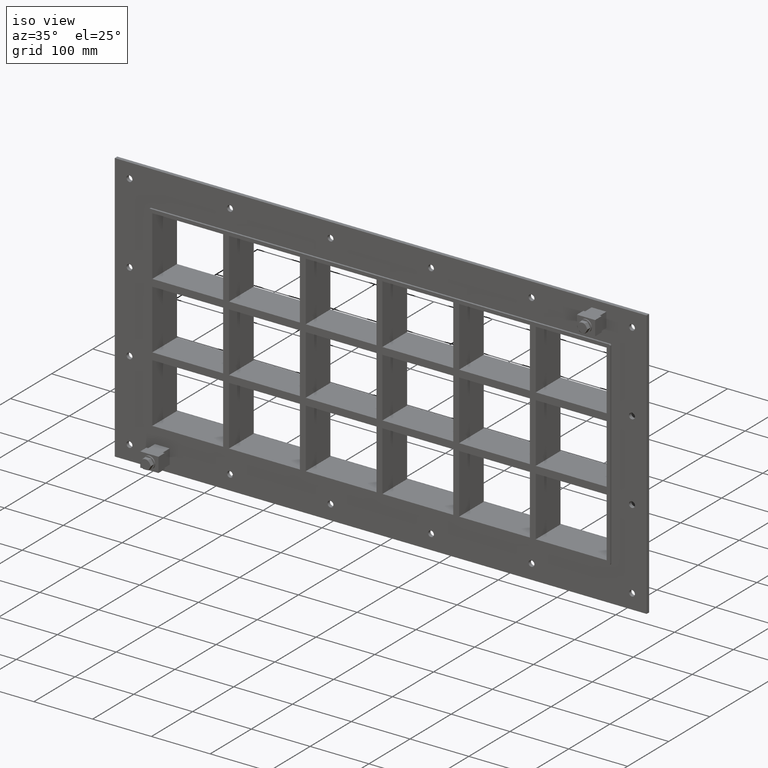
[diagram: clean part render]
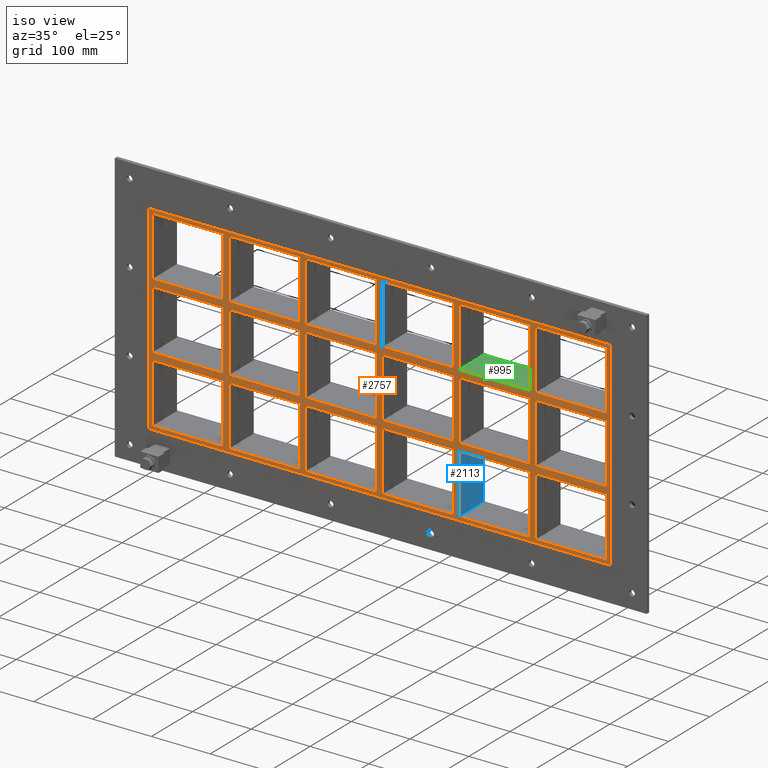
[diagram: same view with three faces highlighted in distinct colors, each labeled with its STEP entity id]
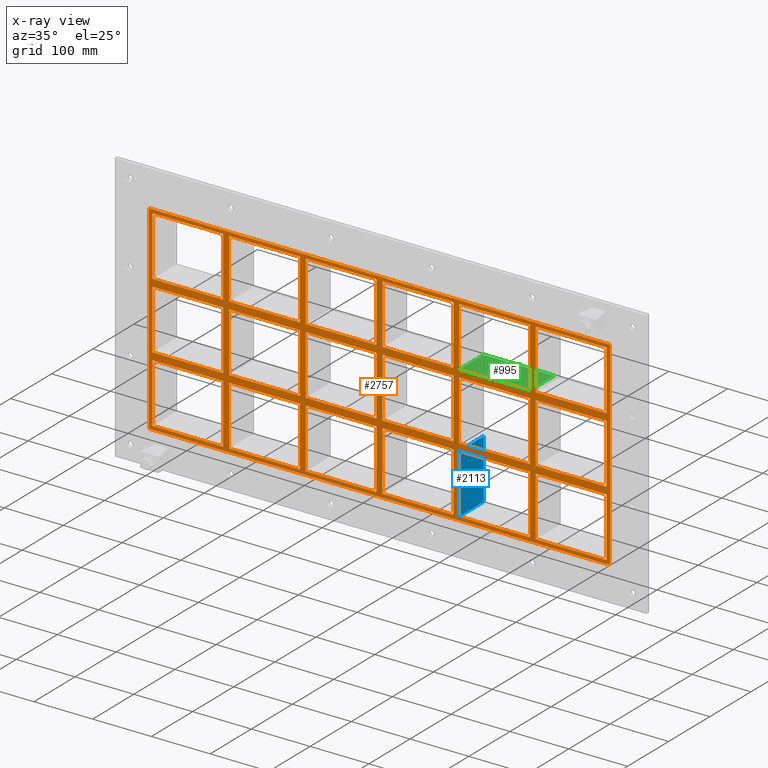
[diagram: x-ray of the same camera — body ghosted, the three highlighted faces saturated]
A machine part, iso view with three faces highlighted in distinct colors.
The next image is the same camera in x-ray (body ghosted, the three faces saturated) — at least one of them is partly hidden behind the body in this view.
Their STEP definitions:

[orange] entity #2757 — the highlighted planar face has unit normal (0, 1, 0).
#521=CARTESIAN_POINT('',(-266.00000000000017,-3.0,50.499999999988709));
#522=VERTEX_POINT('',#521);
#531=CARTESIAN_POINT('',(-386.49999999999852,-3.0,50.499999999988638));
#532=VERTEX_POINT('',#531);
#533=CARTESIAN_POINT('',(-266.00000000000023,-3.0,50.499999999988717));
#534=DIRECTION('',(-1.0,0.0,0.0));
#535=VECTOR('',#534,120.49999999999829);
#536=LINE('',#533,#535);
#537=EDGE_CURVE('',#522,#532,#536,.T.);
#561=CARTESIAN_POINT('',(-135.50000000000011,-3.0,50.499999999988802));
#562=VERTEX_POINT('',#561);
#571=CARTESIAN_POINT('',(-256.00000000000364,-3.0,50.499999999988731));
#572=VERTEX_POINT('',#571);
#573=CARTESIAN_POINT('',(-135.50000000000011,-3.0,50.499999999988802));
#574=DIRECTION('',(-1.0,0.0,0.0));
#575=VECTOR('',#574,120.50000000000352);
#576=LINE('',#573,#575);
#577=EDGE_CURVE('',#562,#572,#576,.T.);
#601=CARTESIAN_POINT('',(-5.000000000000142,-3.0,50.49999999998888));
#602=VERTEX_POINT('',#601);
#611=CARTESIAN_POINT('',(-125.50000000000367,-3.0,50.499999999988809));
#612=VERTEX_POINT('',#611);
#613=CARTESIAN_POINT('',(-5.000000000000114,-3.0,50.49999999998888));
#614=DIRECTION('',(-1.0,0.0,0.0));
#615=VECTOR('',#614,120.50000000000352);
#616=LINE('',#613,#615);
#617=EDGE_CURVE('',#602,#612,#616,.T.);
#641=CARTESIAN_POINT('',(125.4999999999999,-3.0,50.499999999988958));
#642=VERTEX_POINT('',#641);
#651=CARTESIAN_POINT('',(4.999999999996376,-3.0,50.499999999988887));
#652=VERTEX_POINT('',#651);
#653=CARTESIAN_POINT('',(125.49999999999989,-3.0,50.499999999988965));
#654=DIRECTION('',(-1.0,0.0,0.0));
#655=VECTOR('',#654,120.50000000000352);
#656=LINE('',#653,#655);
#657=EDGE_CURVE('',#642,#652,#656,.T.);
#683=CARTESIAN_POINT('',(265.99999999999642,-3.0,50.499999999989043));
#684=VERTEX_POINT('',#683);
#699=CARTESIAN_POINT('',(386.49999999999636,-3.0,50.499999999989129));
#700=VERTEX_POINT('',#699);
#707=CARTESIAN_POINT('',(386.49999999999636,-3.0,50.499999999989129));
#708=DIRECTION('',(-1.0,0.0,0.0));
#709=VECTOR('',#708,120.49999999999994);
#710=LINE('',#707,#709);
#711=EDGE_CURVE('',#700,#684,#710,.T.);
#721=CARTESIAN_POINT('',(255.99999999999991,-3.0,50.499999999989043));
#722=VERTEX_POINT('',#721);
#731=CARTESIAN_POINT('',(135.49999999999642,-3.0,50.499999999988965));
#732=VERTEX_POINT('',#731);
#733=CARTESIAN_POINT('',(255.99999999999991,-3.0,50.499999999989043));
#734=DIRECTION('',(-1.0,0.0,0.0));
#735=VECTOR('',#734,120.5000000000035);
#736=LINE('',#733,#735);
#737=EDGE_CURVE('',#722,#732,#736,.T.);
#763=CARTESIAN_POINT('',(-266.00000000000017,-3.0,62.500000000000462));
#764=VERTEX_POINT('',#763);
#779=CARTESIAN_POINT('',(-386.49999999999852,-3.0,62.500000000000462));
#780=VERTEX_POINT('',#779);
#787=CARTESIAN_POINT('',(-386.49999999999852,-3.0,62.500000000000462));
#788=DIRECTION('',(1.0,0.0,0.0));
#789=VECTOR('',#788,120.49999999999835);
#790=LINE('',#787,#789);
#791=EDGE_CURVE('',#780,#764,#790,.T.);
#801=CARTESIAN_POINT('',(265.99999999999636,-3.0,62.500000000000462));
#802=VERTEX_POINT('',#801);
#811=CARTESIAN_POINT('',(386.49999999999949,-3.0,62.500000000000462));
#812=VERTEX_POINT('',#811);
#813=CARTESIAN_POINT('',(265.99999999999636,-3.0,62.500000000000462));
#814=DIRECTION('',(1.0,0.0,0.0));
#815=VECTOR('',#814,120.50000000000307);
#816=LINE('',#813,#815);
#817=EDGE_CURVE('',#802,#812,#816,.T.);
#843=CARTESIAN_POINT('',(-135.50000000000014,-3.0,62.500000000000462));
#844=VERTEX_POINT('',#843);
#859=CARTESIAN_POINT('',(-256.00000000000364,-3.0,62.500000000000462));
#860=VERTEX_POINT('',#859);
#867=CARTESIAN_POINT('',(-256.00000000000364,-3.0,62.500000000000462));
#868=DIRECTION('',(1.0,0.0,0.0));
#869=VECTOR('',#868,120.50000000000347);
#870=LINE('',#867,#869);
#871=EDGE_CURVE('',#860,#844,#870,.T.);
#883=CARTESIAN_POINT('',(-5.000000000000142,-3.0,62.500000000000462));
#884=VERTEX_POINT('',#883);
#899=CARTESIAN_POINT('',(-125.50000000000364,-3.0,62.500000000000462));
#900=VERTEX_POINT('',#899);
#907=CARTESIAN_POINT('',(-125.50000000000364,-3.0,62.500000000000462));
#908=DIRECTION('',(1.0,0.0,0.0));
#909=VECTOR('',#908,120.50000000000347);
#910=LINE('',#907,#909);
#911=EDGE_CURVE('',#900,#884,#910,.T.);
#923=CARTESIAN_POINT('',(125.4999999999999,-3.0,62.500000000000462));
#924=VERTEX_POINT('',#923);
#939=CARTESIAN_POINT('',(4.999999999996376,-3.0,62.500000000000462));
#940=VERTEX_POINT('',#939);
#947=CARTESIAN_POINT('',(4.999999999996362,-3.0,62.500000000000462));
#948=DIRECTION('',(1.0,0.0,0.0));
#949=VECTOR('',#948,120.50000000000352);
#950=LINE('',#947,#949);
#951=EDGE_CURVE('',#940,#924,#950,.T.);
#963=CARTESIAN_POINT('',(255.99999999999994,-3.0,62.500000000000462));
#964=VERTEX_POINT('',#963);
#979=CARTESIAN_POINT('',(135.49999999999642,-3.0,62.500000000000462));
#980=VERTEX_POINT('',#979);
#987=CARTESIAN_POINT('',(135.49999999999636,-3.0,62.500000000000462));
#988=DIRECTION('',(1.0,0.0,0.0));
#989=VECTOR('',#988,120.50000000000352);
#990=LINE('',#987,#989);
#991=EDGE_CURVE('',#980,#964,#990,.T.);
#1010=CARTESIAN_POINT('',(-386.5,-3.0,163.5));
#1011=VERTEX_POINT('',#1010);
#1018=CARTESIAN_POINT('',(-386.5,-3.0,62.500000000000455));
#1019=DIRECTION('',(0.0,0.0,1.0));
#1020=VECTOR('',#1019,100.99999999999957);
#1021=LINE('',#1018,#1020);
#1022=EDGE_CURVE('',#780,#1011,#1021,.T.);
#1041=CARTESIAN_POINT('',(386.49999999999949,-3.0,-50.499999999999545));
#1042=VERTEX_POINT('',#1041);
#1049=CARTESIAN_POINT('',(386.5,-3.0,50.499999999989122));
#1050=DIRECTION('',(0.0,0.0,-1.0));
#1051=VECTOR('',#1050,100.99999999998866);
#1052=LINE('',#1049,#1051);
#1053=EDGE_CURVE('',#700,#1042,#1052,.T.);
#1064=CARTESIAN_POINT('',(386.5,-3.0,163.5));
#1065=VERTEX_POINT('',#1064);
#1066=CARTESIAN_POINT('',(386.5,-3.0,163.5));
#1067=DIRECTION('',(0.0,0.0,-1.0));
#1068=VECTOR('',#1067,100.99999999999955);
#1069=LINE('',#1066,#1068);
#1070=EDGE_CURVE('',#1065,#812,#1069,.T.);
#1095=CARTESIAN_POINT('',(255.99999999999991,-3.0,163.5));
#1096=VERTEX_POINT('',#1095);
#1097=CARTESIAN_POINT('',(255.99999999999991,-3.0,62.500000000000483));
#1098=DIRECTION('',(0.0,0.0,1.0));
#1099=VECTOR('',#1098,100.99999999999952);
#1100=LINE('',#1097,#1099);
#1101=EDGE_CURVE('',#964,#1096,#1100,.T.);
#1134=CARTESIAN_POINT('',(265.99999999999642,-3.0,163.5));
#1135=VERTEX_POINT('',#1134);
#1142=CARTESIAN_POINT('',(265.99999999999642,-3.0,163.5));
#1143=DIRECTION('',(0.0,0.0,-1.0));
#1144=VECTOR('',#1143,100.99999999999955);
#1145=LINE('',#1142,#1144);
#1146=EDGE_CURVE('',#1135,#802,#1145,.T.);
#1157=CARTESIAN_POINT('',(125.4999999999999,-3.0,163.5));
#1158=VERTEX_POINT('',#1157);
#1159=CARTESIAN_POINT('',(125.4999999999999,-3.0,62.500000000000483));
#1160=DIRECTION('',(0.0,0.0,1.0));
#1161=VECTOR('',#1160,100.99999999999952);
#1162=LINE('',#1159,#1161);
#1163=EDGE_CURVE('',#924,#1158,#1162,.T.);
#1196=CARTESIAN_POINT('',(135.49999999999642,-3.0,163.5));
#1197=VERTEX_POINT('',#1196);
#1204=CARTESIAN_POINT('',(135.49999999999642,-3.0,163.5));
#1205=DIRECTION('',(0.0,0.0,-1.0));
#1206=VECTOR('',#1205,100.99999999999955);
#1207=LINE('',#1204,#1206);
#1208=EDGE_CURVE('',#1197,#980,#1207,.T.);
#1219=CARTESIAN_POINT('',(-5.000000000000142,-3.0,163.5));
#1220=VERTEX_POINT('',#1219);
#1221=CARTESIAN_POINT('',(-5.000000000000142,-3.0,62.500000000000483));
#1222=DIRECTION('',(0.0,0.0,1.0));
#1223=VECTOR('',#1222,100.99999999999952);
#1224=LINE('',#1221,#1223);
#1225=EDGE_CURVE('',#884,#1220,#1224,.T.);
#1258=CARTESIAN_POINT('',(4.999999999996376,-3.0,163.5));
#1259=VERTEX_POINT('',#1258);
#1266=CARTESIAN_POINT('',(4.999999999996376,-3.0,163.5));
#1267=DIRECTION('',(0.0,0.0,-1.0));
#1268=VECTOR('',#1267,100.99999999999955);
#1269=LINE('',#1266,#1268);
#1270=EDGE_CURVE('',#1259,#940,#1269,.T.);
#1281=CARTESIAN_POINT('',(-135.50000000000014,-3.0,163.5));
#1282=VERTEX_POINT('',#1281);
#1283=CARTESIAN_POINT('',(-135.50000000000014,-3.0,62.500000000000483));
#1284=DIRECTION('',(0.0,0.0,1.0));
#1285=VECTOR('',#1284,100.99999999999952);
#1286=LINE('',#1283,#1285);
#1287=EDGE_CURVE('',#844,#1282,#1286,.T.);
#1320=CARTESIAN_POINT('',(-125.50000000000364,-3.0,163.5));
#1321=VERTEX_POINT('',#1320);
#1328=CARTESIAN_POINT('',(-125.50000000000364,-3.0,163.5));
#1329=DIRECTION('',(0.0,0.0,-1.0));
#1330=VECTOR('',#1329,100.99999999999955);
#1331=LINE('',#1328,#1330);
#1332=EDGE_CURVE('',#1321,#900,#1331,.T.);
#1343=CARTESIAN_POINT('',(-266.00000000000017,-3.0,163.5));
#1344=VERTEX_POINT('',#1343);
#1345=CARTESIAN_POINT('',(-266.00000000000017,-3.0,62.500000000000483));
#1346=DIRECTION('',(0.0,0.0,1.0));
#1347=VECTOR('',#1346,100.99999999999952);
#1348=LINE('',#1345,#1347);
#1349=EDGE_CURVE('',#764,#1344,#1348,.T.);
#1382=CARTESIAN_POINT('',(-266.00000000000017,-3.0,-50.499999999999545));
#1383=VERTEX_POINT('',#1382);
#1390=CARTESIAN_POINT('',(-266.00000000000017,-3.0,-50.499999999999531));
#1391=DIRECTION('',(0.0,0.0,1.0));
#1392=VECTOR('',#1391,100.99999999998825);
#1393=LINE('',#1390,#1392);
#1394=EDGE_CURVE('',#1383,#522,#1393,.T.);
#1413=CARTESIAN_POINT('',(-256.00000000000364,-3.0,163.5));
#1414=VERTEX_POINT('',#1413);
#1421=CARTESIAN_POINT('',(-256.00000000000364,-3.0,163.5));
#1422=DIRECTION('',(0.0,0.0,-1.0));
#1423=VECTOR('',#1422,100.99999999999955);
#1424=LINE('',#1421,#1423);
#1425=EDGE_CURVE('',#1414,#860,#1424,.T.);
#1901=CARTESIAN_POINT('',(255.99999999999991,-3.0,-50.499999999999545));
#1902=VERTEX_POINT('',#1901);
#1909=CARTESIAN_POINT('',(255.99999999999991,-3.0,-50.499999999999531));
#1910=DIRECTION('',(0.0,0.0,1.0));
#1911=VECTOR('',#1910,100.99999999998856);
#1912=LINE('',#1909,#1911);
#1913=EDGE_CURVE('',#1902,#722,#1912,.T.);
#1923=CARTESIAN_POINT('',(255.99999999999991,-3.0,-62.500000000010957));
#1924=VERTEX_POINT('',#1923);
#1932=CARTESIAN_POINT('',(255.99999999999991,-3.0,-163.5));
#1933=VERTEX_POINT('',#1932);
#1940=CARTESIAN_POINT('',(255.99999999999991,-3.0,-163.5));
#1941=DIRECTION('',(0.0,0.0,1.0));
#1942=VECTOR('',#1941,100.99999999998906);
#1943=LINE('',#1940,#1942);
#1944=EDGE_CURVE('',#1933,#1924,#1943,.T.);
#1955=CARTESIAN_POINT('',(265.99999999999642,-3.0,-50.499999999999545));
#1956=VERTEX_POINT('',#1955);
#1957=CARTESIAN_POINT('',(265.99999999999642,-3.0,50.499999999989029));
#1958=DIRECTION('',(0.0,0.0,-1.0));
#1959=VECTOR('',#1958,100.99999999998857);
#1960=LINE('',#1957,#1959);
#1961=EDGE_CURVE('',#684,#1956,#1960,.T.);
#1978=CARTESIAN_POINT('',(265.99999999999642,-3.0,-62.500000000010942));
#1979=VERTEX_POINT('',#1978);
#1986=CARTESIAN_POINT('',(265.99999999999642,-3.0,-163.49999999998175));
#1987=VERTEX_POINT('',#1986);
#1988=CARTESIAN_POINT('',(265.99999999999642,-3.0,-62.500000000010971));
#1989=DIRECTION('',(0.0,0.0,-1.0));
#1990=VECTOR('',#1989,100.99999999997078);
#1991=LINE('',#1988,#1990);
#1992=EDGE_CURVE('',#1979,#1987,#1991,.T.);
#2011=CARTESIAN_POINT('',(125.4999999999999,-3.0,-50.499999999999545));
#2012=VERTEX_POINT('',#2011);
#2019=CARTESIAN_POINT('',(125.4999999999999,-3.0,-50.499999999999531));
#2020=DIRECTION('',(0.0,0.0,1.0));
#2021=VECTOR('',#2020,100.9999999999885);
#2022=LINE('',#2019,#2021);
#2023=EDGE_CURVE('',#2012,#642,#2022,.T.);
#2033=CARTESIAN_POINT('',(125.4999999999999,-3.0,-62.500000000011028));
#2034=VERTEX_POINT('',#2033);
#2042=CARTESIAN_POINT('',(125.4999999999999,-3.0,-163.5));
#2043=VERTEX_POINT('',#2042);
#2050=CARTESIAN_POINT('',(125.4999999999999,-3.0,-163.5));
#2051=DIRECTION('',(0.0,0.0,1.0));
#2052=VECTOR('',#2051,100.99999999998899);
#2053=LINE('',#2050,#2052);
#2054=EDGE_CURVE('',#2043,#2034,#2053,.T.);
#2065=CARTESIAN_POINT('',(135.49999999999642,-3.0,-50.499999999999545));
#2066=VERTEX_POINT('',#2065);
#2067=CARTESIAN_POINT('',(135.49999999999642,-3.0,50.499999999988944));
#2068=DIRECTION('',(0.0,0.0,-1.0));
#2069=VECTOR('',#2068,100.99999999998849);
#2070=LINE('',#2067,#2069);
#2071=EDGE_CURVE('',#732,#2066,#2070,.T.);
#2088=CARTESIAN_POINT('',(135.49999999999642,-3.0,-62.500000000011013));
#2089=VERTEX_POINT('',#2088);
#2096=CARTESIAN_POINT('',(135.49999999999642,-3.0,-163.49999999998175));
#2097=VERTEX_POINT('',#2096);
#2098=CARTESIAN_POINT('',(135.49999999999642,-3.0,-62.500000000011028));
#2099=DIRECTION('',(0.0,0.0,-1.0));
#2100=VECTOR('',#2099,100.99999999997073);
#2101=LINE('',#2098,#2100);
#2102=EDGE_CURVE('',#2089,#2097,#2101,.T.);
#2121=CARTESIAN_POINT('',(-5.000000000000142,-3.0,-50.499999999999545));
#2122=VERTEX_POINT('',#2121);
#2129=CARTESIAN_POINT('',(-5.000000000000142,-3.0,-50.499999999999531));
#2130=DIRECTION('',(0.0,0.0,1.0));
#2131=VECTOR('',#2130,100.99999999998845);
#2132=LINE('',#2129,#2131);
#2133=EDGE_CURVE('',#2122,#602,#2132,.T.);
#2143=CARTESIAN_POINT('',(-5.000000000000142,-3.0,-62.50000000001112));
#2144=VERTEX_POINT('',#2143);
#2152=CARTESIAN_POINT('',(-5.000000000000142,-3.0,-163.5));
#2153=VERTEX_POINT('',#2152);
#2160=CARTESIAN_POINT('',(-5.000000000000142,-3.0,-163.5));
#2161=DIRECTION('',(0.0,0.0,1.0));
#2162=VECTOR('',#2161,100.99999999998889);
#2163=LINE('',#2160,#2162);
#2164=EDGE_CURVE('',#2153,#2144,#2163,.T.);
#2175=CARTESIAN_POINT('',(4.999999999996376,-3.0,-50.499999999999545));
#2176=VERTEX_POINT('',#2175);
#2177=CARTESIAN_POINT('',(4.999999999996376,-3.0,50.499999999988873));
#2178=DIRECTION('',(0.0,0.0,-1.0));
#2179=VECTOR('',#2178,100.99999999998842);
#2180=LINE('',#2177,#2179);
#2181=EDGE_CURVE('',#652,#2176,#2180,.T.);
#2198=CARTESIAN_POINT('',(4.999999999996376,-3.0,-62.50000000001112));
#2199=VERTEX_POINT('',#2198);
#2206=CARTESIAN_POINT('',(4.999999999996376,-3.0,-163.49999999998175));
#2207=VERTEX_POINT('',#2206);
#2208=CARTESIAN_POINT('',(4.999999999996376,-3.0,-62.500000000011141));
#2209=DIRECTION('',(0.0,0.0,-1.0));
#2210=VECTOR('',#2209,100.99999999997061);
#2211=LINE('',#2208,#2210);
#2212=EDGE_CURVE('',#2199,#2207,#2211,.T.);
#2231=CARTESIAN_POINT('',(-135.50000000000014,-3.0,-50.499999999999545));
#2232=VERTEX_POINT('',#2231);
#2239=CARTESIAN_POINT('',(-135.50000000000014,-3.0,-50.499999999999531));
#2240=DIRECTION('',(0.0,0.0,1.0));
#2241=VECTOR('',#2240,100.99999999998836);
#2242=LINE('',#2239,#2241);
#2243=EDGE_CURVE('',#2232,#562,#2242,.T.);
#2253=CARTESIAN_POINT('',(-135.50000000000014,-3.0,-62.500000000011212));
#2254=VERTEX_POINT('',#2253);
#2262=CARTESIAN_POINT('',(-135.50000000000014,-3.0,-163.5));
#2263=VERTEX_POINT('',#2262);
#2270=CARTESIAN_POINT('',(-135.50000000000014,-3.0,-163.5));
#2271=DIRECTION('',(0.0,0.0,1.0));
#2272=VECTOR('',#2271,100.9999999999888);
#2273=LINE('',#2270,#2272);
#2274=EDGE_CURVE('',#2263,#2254,#2273,.T.);
#2285=CARTESIAN_POINT('',(-125.50000000000364,-3.0,-50.499999999999545));
#2286=VERTEX_POINT('',#2285);
#2287=CARTESIAN_POINT('',(-125.50000000000364,-3.0,50.499999999988802));
#2288=DIRECTION('',(0.0,0.0,-1.0));
#2289=VECTOR('',#2288,100.99999999998835);
#2290=LINE('',#2287,#2289);
#2291=EDGE_CURVE('',#612,#2286,#2290,.T.);
#2308=CARTESIAN_POINT('',(-125.50000000000364,-3.0,-62.500000000011191));
#2309=VERTEX_POINT('',#2308);
#2316=CARTESIAN_POINT('',(-125.50000000000364,-3.0,-163.49999999998175));
#2317=VERTEX_POINT('',#2316);
#2318=CARTESIAN_POINT('',(-125.50000000000364,-3.0,-62.500000000011198));
#2319=DIRECTION('',(0.0,0.0,-1.0));
#2320=VECTOR('',#2319,100.99999999997056);
#2321=LINE('',#2318,#2320);
#2322=EDGE_CURVE('',#2309,#2317,#2321,.T.);
#2341=CARTESIAN_POINT('',(-256.00000000000364,-3.0,-163.49999999998175));
#2342=VERTEX_POINT('',#2341);
#2349=CARTESIAN_POINT('',(-135.50000000000011,-3.0,-163.5));
#2350=DIRECTION('',(-1.0,0.0,0.0));
#2351=VECTOR('',#2350,120.50000000000352);
#2352=LINE('',#2349,#2351);
#2353=EDGE_CURVE('',#2263,#2342,#2352,.T.);
#2366=CARTESIAN_POINT('',(-5.000000000000142,-3.0,-163.5));
#2367=DIRECTION('',(-1.0,0.0,0.0));
#2368=VECTOR('',#2367,120.5000000000035);
#2369=LINE('',#2366,#2368);
#2370=EDGE_CURVE('',#2153,#2317,#2369,.T.);
#2383=CARTESIAN_POINT('',(125.49999999999991,-3.0,-163.5));
#2384=DIRECTION('',(-1.0,0.0,0.0));
#2385=VECTOR('',#2384,120.50000000000352);
#2386=LINE('',#2383,#2385);
#2387=EDGE_CURVE('',#2043,#2207,#2386,.T.);
#2400=CARTESIAN_POINT('',(255.99999999999991,-3.0,-163.5));
#2401=DIRECTION('',(-1.0,0.0,0.0));
#2402=VECTOR('',#2401,120.5000000000035);
#2403=LINE('',#2400,#2402);
#2404=EDGE_CURVE('',#1933,#2097,#2403,.T.);
#2415=CARTESIAN_POINT('',(386.5,-3.0,-163.5));
#2416=VERTEX_POINT('',#2415);
#2417=CARTESIAN_POINT('',(386.5,-3.0,-163.5));
#2418=DIRECTION('',(-1.0,0.0,0.0));
#2419=VECTOR('',#2418,120.50000000000358);
#2420=LINE('',#2417,#2419);
#2421=EDGE_CURVE('',#2416,#1987,#2420,.T.);
#2433=CARTESIAN_POINT('',(3.239797E-014,-3.0,0.0));
#2434=DIRECTION('',(0.0,1.0,0.0));
#2435=DIRECTION('',(0.0,0.0,1.0));
#2436=AXIS2_PLACEMENT_3D('',#2433,#2434,#2435);
#2437=PLANE('',#2436);
#2438=CARTESIAN_POINT('',(-390.5,-3.0,-169.50000000000003));
#2439=VERTEX_POINT('',#2438);
#2440=CARTESIAN_POINT('',(-392.5,-3.0,-167.5));
#2441=VERTEX_POINT('',#2440);
#2442=CARTESIAN_POINT('',(-390.5,-3.0,-167.5));
#2443=DIRECTION('',(0.0,1.0,0.0));
#2444=DIRECTION('',(-0.707106781186548,0.0,-0.707106781186548));
#2445=AXIS2_PLACEMENT_3D('',#2442,#2443,#2444);
#2446=CIRCLE('',#2445,2.0);
#2447=EDGE_CURVE('',#2439,#2441,#2446,.T.);
#2448=ORIENTED_EDGE('',*,*,#2447,.F.);
#2449=CARTESIAN_POINT('',(390.50000000000011,-3.0,-169.50000000000003));
#2450=VERTEX_POINT('',#2449);
#2451=CARTESIAN_POINT('',(-390.5,-3.0,-169.50000000000003));
#2452=DIRECTION('',(1.0,0.0,0.0));
#2453=VECTOR('',#2452,781.00000000000011);
#2454=LINE('',#2451,#2453);
#2455=EDGE_CURVE('',#2439,#2450,#2454,.T.);
#2456=ORIENTED_EDGE('',*,*,#2455,.T.);
#2457=CARTESIAN_POINT('',(392.50000000000006,-3.0,-167.5));
#2458=VERTEX_POINT('',#2457);
#2459=CARTESIAN_POINT('',(390.50000000000011,-3.0,-167.5));
#2460=DIRECTION('',(0.0,1.0,0.0));
#2461=DIRECTION('',(0.707106781186522,0.0,-0.707106781186573));
#2462=AXIS2_PLACEMENT_3D('',#2459,#2460,#2461);
#2463=CIRCLE('',#2462,2.0);
#2464=EDGE_CURVE('',#2458,#2450,#2463,.T.);
#2465=ORIENTED_EDGE('',*,*,#2464,.F.);
#2466=CARTESIAN_POINT('',(392.50000000000006,-3.0,167.50000000000003));
#2467=VERTEX_POINT('',#2466);
#2468=CARTESIAN_POINT('',(392.50000000000006,-3.0,-167.49999999999997));
#2469=DIRECTION('',(0.0,0.0,1.0));
#2470=VECTOR('',#2469,335.0);
#2471=LINE('',#2468,#2470);
#2472=EDGE_CURVE('',#2458,#2467,#2471,.T.);
#2473=ORIENTED_EDGE('',*,*,#2472,.T.);
#2474=CARTESIAN_POINT('',(390.50000000000006,-3.0,169.50000000000003));
#2475=VERTEX_POINT('',#2474);
#2476=CARTESIAN_POINT('',(390.50000000000006,-3.0,167.50000000000003));
#2477=DIRECTION('',(0.0,1.0,0.0));
#2478=DIRECTION('',(0.70710678118656,0.0,0.707106781186535));
#2479=AXIS2_PLACEMENT_3D('',#2476,#2477,#2478);
#2480=CIRCLE('',#2479,2.0);
#2481=EDGE_CURVE('',#2475,#2467,#2480,.T.);
#2482=ORIENTED_EDGE('',*,*,#2481,.F.);
#2483=CARTESIAN_POINT('',(-390.5,-3.0,169.50000000000003));
#2484=VERTEX_POINT('',#2483);
#2485=CARTESIAN_POINT('',(390.50000000000006,-3.0,169.50000000000003));
#2486=DIRECTION('',(-1.0,0.0,0.0));
#2487=VECTOR('',#2486,781.0);
#2488=LINE('',#2485,#2487);
#2489=EDGE_CURVE('',#2475,#2484,#2488,.T.);
#2490=ORIENTED_EDGE('',*,*,#2489,.T.);
#2491=CARTESIAN_POINT('',(-392.5,-3.0,167.5));
#2492=VERTEX_POINT('',#2491);
#2493=CARTESIAN_POINT('',(-390.5,-3.0,167.5));
#2494=DIRECTION('',(0.0,1.0,0.0));
#2495=DIRECTION('',(-0.707106781186548,0.0,0.707106781186548));
#2496=AXIS2_PLACEMENT_3D('',#2493,#2494,#2495);
#2497=CIRCLE('',#2496,2.0);
#2498=EDGE_CURVE('',#2492,#2484,#2497,.T.);
#2499=ORIENTED_EDGE('',*,*,#2498,.F.);
#2500=CARTESIAN_POINT('',(-392.5,-3.0,167.49999999999997));
#2501=DIRECTION('',(0.0,0.0,-1.0));
#2502=VECTOR('',#2501,335.0);
#2503=LINE('',#2500,#2502);
#2504=EDGE_CURVE('',#2492,#2441,#2503,.T.);
#2505=ORIENTED_EDGE('',*,*,#2504,.T.);
#2506=EDGE_LOOP('',(#2448,#2456,#2465,#2473,#2482,#2490,#2499,#2505));
#2507=FACE_OUTER_BOUND('',#2506,.T.);
#2508=ORIENTED_EDGE('',*,*,#1022,.T.);
#2509=CARTESIAN_POINT('',(-386.5,-3.0,163.5));
#2510=DIRECTION('',(1.0,0.0,0.0));
#2511=VECTOR('',#2510,120.49999999999983);
#2512=LINE('',#2509,#2511);
#2513=EDGE_CURVE('',#1011,#1344,#2512,.T.);
#2514=ORIENTED_EDGE('',*,*,#2513,.T.);
#2515=ORIENTED_EDGE('',*,*,#1349,.F.);
#2516=ORIENTED_EDGE('',*,*,#791,.F.);
#2517=EDGE_LOOP('',(#2508,#2514,#2515,#2516));
#2518=FACE_BOUND('',#2517,.T.);
#2519=ORIENTED_EDGE('',*,*,#1053,.T.);
#2520=CARTESIAN_POINT('',(265.99999999999636,-3.0,-50.499999999999545));
#2521=DIRECTION('',(1.0,0.0,0.0));
#2522=VECTOR('',#2521,120.50000000000307);
#2523=LINE('',#2520,#2522);
#2524=EDGE_CURVE('',#1956,#1042,#2523,.T.);
#2525=ORIENTED_EDGE('',*,*,#2524,.F.);
#2526=ORIENTED_EDGE('',*,*,#1961,.F.);
#2527=ORIENTED_EDGE('',*,*,#711,.F.);
#2528=EDGE_LOOP('',(#2519,#2525,#2526,#2527));
#2529=FACE_BOUND('',#2528,.T.);
#2530=ORIENTED_EDGE('',*,*,#1913,.F.);
#2531=CARTESIAN_POINT('',(135.49999999999636,-3.0,-50.499999999999545));
#2532=DIRECTION('',(1.0,0.0,0.0));
#2533=VECTOR('',#2532,120.50000000000352);
#2534=LINE('',#2531,#2533);
#2535=EDGE_CURVE('',#2066,#1902,#2534,.T.);
#2536=ORIENTED_EDGE('',*,*,#2535,.F.);
#2537=ORIENTED_EDGE('',*,*,#2071,.F.);
#2538=ORIENTED_EDGE('',*,*,#737,.F.);
#2539=EDGE_LOOP('',(#2530,#2536,#2537,#2538));
#2540=FACE_BOUND('',#2539,.T.);
#2541=ORIENTED_EDGE('',*,*,#2023,.F.);
#2542=CARTESIAN_POINT('',(4.999999999996362,-3.0,-50.499999999999545));
#2543=DIRECTION('',(1.0,0.0,0.0));
#2544=VECTOR('',#2543,120.50000000000352);
#2545=LINE('',#2542,#2544);
#2546=EDGE_CURVE('',#2176,#2012,#2545,.T.);
#2547=ORIENTED_EDGE('',*,*,#2546,.F.);
#2548=ORIENTED_EDGE('',*,*,#2181,.F.);
#2549=ORIENTED_EDGE('',*,*,#657,.F.);
#2550=EDGE_LOOP('',(#2541,#2547,#2548,#2549));
#2551=FACE_BOUND('',#2550,.T.);
#2552=ORIENTED_EDGE('',*,*,#2133,.F.);
#2553=CARTESIAN_POINT('',(-125.50000000000364,-3.0,-50.499999999999545));
#2554=DIRECTION('',(1.0,0.0,0.0));
#2555=VECTOR('',#2554,120.50000000000347);
#2556=LINE('',#2553,#2555);
#2557=EDGE_CURVE('',#2286,#2122,#2556,.T.);
#2558=ORIENTED_EDGE('',*,*,#2557,.F.);
#2559=ORIENTED_EDGE('',*,*,#2291,.F.);
#2560=ORIENTED_EDGE('',*,*,#617,.F.);
#2561=EDGE_LOOP('',(#2552,#2558,#2559,#2560));
#2562=FACE_BOUND('',#2561,.T.);
#2563=ORIENTED_EDGE('',*,*,#2243,.F.);
#2564=CARTESIAN_POINT('',(-256.00000000000364,-3.0,-50.499999999999545));
#2565=VERTEX_POINT('',#2564);
#2566=CARTESIAN_POINT('',(-256.00000000000364,-3.0,-50.499999999999545));
#2567=DIRECTION('',(1.0,0.0,0.0));
#2568=VECTOR('',#2567,120.50000000000347);
#2569=LINE('',#2566,#2568);
#2570=EDGE_CURVE('',#2565,#2232,#2569,.T.);
#2571=ORIENTED_EDGE('',*,*,#2570,.F.);
#2572=CARTESIAN_POINT('',(-256.00000000000364,-3.0,50.499999999988717));
#2573=DIRECTION('',(0.0,0.0,-1.0));
#2574=VECTOR('',#2573,100.99999999998826);
#2575=LINE('',#2572,#2574);
#2576=EDGE_CURVE('',#572,#2565,#2575,.T.);
#2577=ORIENTED_EDGE('',*,*,#2576,.F.);
#2578=ORIENTED_EDGE('',*,*,#577,.F.);
#2579=EDGE_LOOP('',(#2563,#2571,#2577,#2578));
#2580=FACE_BOUND('',#2579,.T.);
#2581=ORIENTED_EDGE('',*,*,#991,.F.);
#2582=ORIENTED_EDGE('',*,*,#1208,.F.);
#2583=CARTESIAN_POINT('',(135.49999999999648,-3.0,163.5));
#2584=DIRECTION('',(1.0,0.0,0.0));
#2585=VECTOR('',#2584,120.50000000000341);
#2586=LINE('',#2583,#2585);
#2587=EDGE_CURVE('',#1197,#1096,#2586,.T.);
#2588=ORIENTED_EDGE('',*,*,#2587,.T.);
#2589=ORIENTED_EDGE('',*,*,#1101,.F.);
#2590=EDGE_LOOP('',(#2581,#2582,#2588,#2589));
#2591=FACE_BOUND('',#2590,.T.);
#2592=ORIENTED_EDGE('',*,*,#951,.F.);
#2593=ORIENTED_EDGE('',*,*,#1270,.F.);
#2594=CARTESIAN_POINT('',(4.999999999996362,-3.0,163.5));
#2595=DIRECTION('',(1.0,0.0,0.0));
#2596=VECTOR('',#2595,120.50000000000352);
#2597=LINE('',#2594,#2596);
#2598=EDGE_CURVE('',#1259,#1158,#2597,.T.);
#2599=ORIENTED_EDGE('',*,*,#2598,.T.);
#2600=ORIENTED_EDGE('',*,*,#1163,.F.);
#2601=EDGE_LOOP('',(#2592,#2593,#2599,#2600));
#2602=FACE_BOUND('',#2601,.T.);
#2603=ORIENTED_EDGE('',*,*,#911,.F.);
#2604=ORIENTED_EDGE('',*,*,#1332,.F.);
#2605=CARTESIAN_POINT('',(-125.50000000000364,-3.0,163.5));
#2606=DIRECTION('',(1.0,0.0,0.0));
#2607=VECTOR('',#2606,120.5000000000035);
#2608=LINE('',#2605,#2607);
#2609=EDGE_CURVE('',#1321,#1220,#2608,.T.);
#2610=ORIENTED_EDGE('',*,*,#2609,.T.);
#2611=ORIENTED_EDGE('',*,*,#1225,.F.);
#2612=EDGE_LOOP('',(#2603,#2604,#2610,#2611));
#2613=FACE_BOUND('',#2612,.T.);
#2614=ORIENTED_EDGE('',*,*,#871,.F.);
#2615=ORIENTED_EDGE('',*,*,#1425,.F.);
#2616=CARTESIAN_POINT('',(-256.00000000000364,-3.0,163.5));
#2617=DIRECTION('',(1.0,0.0,0.0));
#2618=VECTOR('',#2617,120.50000000000347);
#2619=LINE('',#2616,#2618);
#2620=EDGE_CURVE('',#1414,#1282,#2619,.T.);
#2621=ORIENTED_EDGE('',*,*,#2620,.T.);
#2622=ORIENTED_EDGE('',*,*,#1287,.F.);
#2623=EDGE_LOOP('',(#2614,#2615,#2621,#2622));
#2624=FACE_BOUND('',#2623,.T.);
#2625=ORIENTED_EDGE('',*,*,#537,.F.);
#2626=ORIENTED_EDGE('',*,*,#1394,.F.);
#2627=CARTESIAN_POINT('',(-386.49999999999852,-3.0,-50.499999999999545));
#2628=VERTEX_POINT('',#2627);
#2629=CARTESIAN_POINT('',(-386.49999999999852,-3.0,-50.499999999999545));
#2630=DIRECTION('',(1.0,0.0,0.0));
#2631=VECTOR('',#2630,120.49999999999835);
#2632=LINE('',#2629,#2631);
#2633=EDGE_CURVE('',#2628,#1383,#2632,.T.);
#2634=ORIENTED_EDGE('',*,*,#2633,.F.);
#2635=CARTESIAN_POINT('',(-386.5,-3.0,-50.499999999999538));
#2636=DIRECTION('',(0.0,0.0,1.0));
#2637=VECTOR('',#2636,100.99999999998818);
#2638=LINE('',#2635,#2637);
#2639=EDGE_CURVE('',#2628,#532,#2638,.T.);
#2640=ORIENTED_EDGE('',*,*,#2639,.T.);
#2641=EDGE_LOOP('',(#2625,#2626,#2634,#2640));
#2642=FACE_BOUND('',#2641,.T.);
#2643=ORIENTED_EDGE('',*,*,#817,.F.);
#2644=ORIENTED_EDGE('',*,*,#1146,.F.);
#2645=CARTESIAN_POINT('',(265.99999999999642,-3.0,163.5));
#2646=DIRECTION('',(1.0,0.0,0.0));
#2647=VECTOR('',#2646,120.50000000000358);
#2648=LINE('',#2645,#2647);
#2649=EDGE_CURVE('',#1135,#1065,#2648,.T.);
#2650=ORIENTED_EDGE('',*,*,#2649,.T.);
#2651=ORIENTED_EDGE('',*,*,#1070,.T.);
#2652=EDGE_LOOP('',(#2643,#2644,#2650,#2651));
#2653=FACE_BOUND('',#2652,.T.);
#2654=ORIENTED_EDGE('',*,*,#2404,.T.);
#2655=ORIENTED_EDGE('',*,*,#2102,.F.);
#2656=CARTESIAN_POINT('',(255.99999999999991,-3.0,-62.500000000010964));
#2657=DIRECTION('',(-1.0,0.0,0.0));
#2658=VECTOR('',#2657,120.5000000000035);
#2659=LINE('',#2656,#2658);
#2660=EDGE_CURVE('',#1924,#2089,#2659,.T.);
#2661=ORIENTED_EDGE('',*,*,#2660,.F.);
#2662=ORIENTED_EDGE('',*,*,#1944,.F.);
#2663=EDGE_LOOP('',(#2654,#2655,#2661,#2662));
#2664=FACE_BOUND('',#2663,.T.);
#2665=ORIENTED_EDGE('',*,*,#2387,.T.);
#2666=ORIENTED_EDGE('',*,*,#2212,.F.);
#2667=CARTESIAN_POINT('',(125.49999999999989,-3.0,-62.500000000011042));
#2668=DIRECTION('',(-1.0,0.0,0.0));
#2669=VECTOR('',#2668,120.50000000000352);
#2670=LINE('',#2667,#2669);
#2671=EDGE_CURVE('',#2034,#2199,#2670,.T.);
#2672=ORIENTED_EDGE('',*,*,#2671,.F.);
#2673=ORIENTED_EDGE('',*,*,#2054,.F.);
#2674=EDGE_LOOP('',(#2665,#2666,#2672,#2673));
#2675=FACE_BOUND('',#2674,.T.);
#2676=ORIENTED_EDGE('',*,*,#2370,.T.);
#2677=ORIENTED_EDGE('',*,*,#2322,.F.);
#2678=CARTESIAN_POINT('',(-5.000000000000114,-3.0,-62.500000000011127));
#2679=DIRECTION('',(-1.0,0.0,0.0));
#2680=VECTOR('',#2679,120.50000000000352);
#2681=LINE('',#2678,#2680);
#2682=EDGE_CURVE('',#2144,#2309,#2681,.T.);
#2683=ORIENTED_EDGE('',*,*,#2682,.F.);
#2684=ORIENTED_EDGE('',*,*,#2164,.F.);
#2685=EDGE_LOOP('',(#2676,#2677,#2683,#2684));
#2686=FACE_BOUND('',#2685,.T.);
#2687=ORIENTED_EDGE('',*,*,#2353,.T.);
#2688=CARTESIAN_POINT('',(-256.00000000000364,-3.0,-62.500000000011291));
#2689=VERTEX_POINT('',#2688);
#2690=CARTESIAN_POINT('',(-256.00000000000364,-3.0,-62.500000000011312));
#2691=DIRECTION('',(0.0,0.0,-1.0));
#2692=VECTOR('',#2691,100.99999999997044);
#2693=LINE('',#2690,#2692);
#2694=EDGE_CURVE('',#2689,#2342,#2693,.T.);
#2695=ORIENTED_EDGE('',*,*,#2694,.F.);
#2696=CARTESIAN_POINT('',(-135.50000000000011,-3.0,-62.500000000011205));
#2697=DIRECTION('',(-1.0,0.0,0.0));
#2698=VECTOR('',#2697,120.50000000000352);
#2699=LINE('',#2696,#2698);
#2700=EDGE_CURVE('',#2254,#2689,#2699,.T.);
#2701=ORIENTED_EDGE('',*,*,#2700,.F.);
#2702=ORIENTED_EDGE('',*,*,#2274,.F.);
#2703=EDGE_LOOP('',(#2687,#2695,#2701,#2702));
#2704=FACE_BOUND('',#2703,.T.);
#2705=ORIENTED_EDGE('',*,*,#1992,.F.);
#2706=CARTESIAN_POINT('',(386.49999999999636,-3.0,-62.500000000010878));
#2707=VERTEX_POINT('',#2706);
#2708=CARTESIAN_POINT('',(386.49999999999636,-3.0,-62.500000000010878));
#2709=DIRECTION('',(-1.0,0.0,0.0));
#2710=VECTOR('',#2709,120.49999999999994);
#2711=LINE('',#2708,#2710);
#2712=EDGE_CURVE('',#2707,#1979,#2711,.T.);
#2713=ORIENTED_EDGE('',*,*,#2712,.F.);
#2714=CARTESIAN_POINT('',(386.5,-3.0,-62.500000000010886));
#2715=DIRECTION('',(0.0,0.0,-1.0));
#2716=VECTOR('',#2715,100.99999999998914);
#2717=LINE('',#2714,#2716);
#2718=EDGE_CURVE('',#2707,#2416,#2717,.T.);
#2719=ORIENTED_EDGE('',*,*,#2718,.T.);
#2720=ORIENTED_EDGE('',*,*,#2421,.T.);
#2721=EDGE_LOOP('',(#2705,#2713,#2719,#2720));
#2722=FACE_BOUND('',#2721,.T.);
#2723=CARTESIAN_POINT('',(-266.00000000000023,-3.0,-62.500000000011291));
#2724=VERTEX_POINT('',#2723);
#2725=CARTESIAN_POINT('',(-386.49999999999852,-3.0,-62.500000000011369));
#2726=VERTEX_POINT('',#2725);
#2727=CARTESIAN_POINT('',(-266.00000000000023,-3.0,-62.500000000011291));
#2728=DIRECTION('',(-1.0,0.0,0.0));
#2729=VECTOR('',#2728,120.49999999999829);
#2730=LINE('',#2727,#2729);
#2731=EDGE_CURVE('',#2724,#2726,#2730,.T.);
#2732=ORIENTED_EDGE('',*,*,#2731,.F.);
#2733=CARTESIAN_POINT('',(-266.00000000000017,-3.0,-163.5));
#2734=VERTEX_POINT('',#2733);
#2735=CARTESIAN_POINT('',(-266.00000000000017,-3.0,-163.5));
#2736=DIRECTION('',(0.0,0.0,1.0));
#2737=VECTOR('',#2736,100.99999999998872);
#2738=LINE('',#2735,#2737);
#2739=EDGE_CURVE('',#2734,#2724,#2738,.T.);
#2740=ORIENTED_EDGE('',*,*,#2739,.F.);
#2741=CARTESIAN_POINT('',(-386.5,-3.0,-163.5));
#2742=VERTEX_POINT('',#2741);
#2743=CARTESIAN_POINT('',(-266.00000000000011,-3.0,-163.5));
#2744=DIRECTION('',(-1.0,0.0,0.0));
#2745=VECTOR('',#2744,120.49999999999989);
#2746=LINE('',#2743,#2745);
#2747=EDGE_CURVE('',#2734,#2742,#2746,.T.);
#2748=ORIENTED_EDGE('',*,*,#2747,.T.);
#2749=CARTESIAN_POINT('',(-386.5,-3.0,-163.5));
#2750=DIRECTION('',(0.0,0.0,1.0));
#2751=VECTOR('',#2750,100.99999999998863);
#2752=LINE('',#2749,#2751);
#2753=EDGE_CURVE('',#2742,#2726,#2752,.T.);
#2754=ORIENTED_EDGE('',*,*,#2753,.T.);
#2755=EDGE_LOOP('',(#2732,#2740,#2748,#2754));
#2756=FACE_BOUND('',#2755,.T.);
#2757=ADVANCED_FACE('',(#2507,#2518,#2529,#2540,#2551,#2562,#2580,#2591,#2602,#2613,#2624,#2642,#2653,#2664,#2675,#2686,#2704,#2722,#2756),#2437,.F.);

[blue] entity #2113 — the highlighted planar face has unit normal (1, 0, 0).
#1824=CARTESIAN_POINT('',(135.49999999999642,57.0,-62.500000000011013));
#1825=VERTEX_POINT('',#1824);
#1832=CARTESIAN_POINT('',(135.49999999999642,57.0,-163.49999999998175));
#1833=VERTEX_POINT('',#1832);
#1834=CARTESIAN_POINT('',(135.49999999999642,57.0,-62.500000000011028));
#1835=DIRECTION('',(0.0,0.0,-1.0));
#1836=VECTOR('',#1835,100.99999999997073);
#1837=LINE('',#1834,#1836);
#1838=EDGE_CURVE('',#1825,#1833,#1837,.T.);
#2083=CARTESIAN_POINT('',(135.49999999999642,-3.0,163.5));
#2084=DIRECTION('',(1.0,0.0,0.0));
#2085=DIRECTION('',(0.0,0.0,-1.0));
#2086=AXIS2_PLACEMENT_3D('',#2083,#2084,#2085);
#2087=PLANE('',#2086);
#2088=CARTESIAN_POINT('',(135.49999999999642,-3.0,-62.500000000011013));
#2089=VERTEX_POINT('',#2088);
#2090=CARTESIAN_POINT('',(135.49999999999642,-3.0,-62.500000000011028));
#2091=DIRECTION('',(0.0,1.0,0.0));
#2092=VECTOR('',#2091,60.0);
#2093=LINE('',#2090,#2092);
#2094=EDGE_CURVE('',#2089,#1825,#2093,.T.);
#2095=ORIENTED_EDGE('',*,*,#2094,.F.);
#2096=CARTESIAN_POINT('',(135.49999999999642,-3.0,-163.49999999998175));
#2097=VERTEX_POINT('',#2096);
#2098=CARTESIAN_POINT('',(135.49999999999642,-3.0,-62.500000000011028));
#2099=DIRECTION('',(0.0,0.0,-1.0));
#2100=VECTOR('',#2099,100.99999999997073);
#2101=LINE('',#2098,#2100);
#2102=EDGE_CURVE('',#2089,#2097,#2101,.T.);
#2103=ORIENTED_EDGE('',*,*,#2102,.T.);
#2104=CARTESIAN_POINT('',(135.49999999999642,57.000000000000007,-163.5));
#2105=DIRECTION('',(0.0,-1.0,0.0));
#2106=VECTOR('',#2105,60.000000000000007);
#2107=LINE('',#2104,#2106);
#2108=EDGE_CURVE('',#1833,#2097,#2107,.T.);
#2109=ORIENTED_EDGE('',*,*,#2108,.F.);
#2110=ORIENTED_EDGE('',*,*,#1838,.F.);
#2111=EDGE_LOOP('',(#2095,#2103,#2109,#2110));
#2112=FACE_OUTER_BOUND('',#2111,.T.);
#2113=ADVANCED_FACE('',(#2112),#2087,.T.);

[green] entity #995 — the highlighted planar face has unit normal (0, 0, 1).
#956=CARTESIAN_POINT('',(-386.49999999999852,-3.0,62.500000000000462));
#957=DIRECTION('',(0.0,0.0,1.0));
#958=DIRECTION('',(1.0,0.0,0.0));
#959=AXIS2_PLACEMENT_3D('',#956,#957,#958);
#960=PLANE('',#959);
#961=CARTESIAN_POINT('',(255.99999999999994,57.0,62.500000000000462));
#962=VERTEX_POINT('',#961);
#963=CARTESIAN_POINT('',(255.99999999999994,-3.0,62.500000000000462));
#964=VERTEX_POINT('',#963);
#965=CARTESIAN_POINT('',(255.99999999999994,57.0,62.500000000000462));
#966=DIRECTION('',(0.0,-1.0,0.0));
#967=VECTOR('',#966,60.0);
#968=LINE('',#965,#967);
#969=EDGE_CURVE('',#962,#964,#968,.T.);
#970=ORIENTED_EDGE('',*,*,#969,.F.);
#971=CARTESIAN_POINT('',(135.49999999999642,57.0,62.500000000000462));
#972=VERTEX_POINT('',#971);
#973=CARTESIAN_POINT('',(135.49999999999636,57.0,62.500000000000462));
#974=DIRECTION('',(1.0,0.0,0.0));
#975=VECTOR('',#974,120.50000000000352);
#976=LINE('',#973,#975);
#977=EDGE_CURVE('',#972,#962,#976,.T.);
#978=ORIENTED_EDGE('',*,*,#977,.F.);
#979=CARTESIAN_POINT('',(135.49999999999642,-3.0,62.500000000000462));
#980=VERTEX_POINT('',#979);
#981=CARTESIAN_POINT('',(135.49999999999642,-3.0,62.500000000000462));
#982=DIRECTION('',(0.0,1.0,0.0));
#983=VECTOR('',#982,60.0);
#984=LINE('',#981,#983);
#985=EDGE_CURVE('',#980,#972,#984,.T.);
#986=ORIENTED_EDGE('',*,*,#985,.F.);
#987=CARTESIAN_POINT('',(135.49999999999636,-3.0,62.500000000000462));
#988=DIRECTION('',(1.0,0.0,0.0));
#989=VECTOR('',#988,120.50000000000352);
#990=LINE('',#987,#989);
#991=EDGE_CURVE('',#980,#964,#990,.T.);
#992=ORIENTED_EDGE('',*,*,#991,.T.);
#993=EDGE_LOOP('',(#970,#978,#986,#992));
#994=FACE_OUTER_BOUND('',#993,.T.);
#995=ADVANCED_FACE('',(#994),#960,.T.);